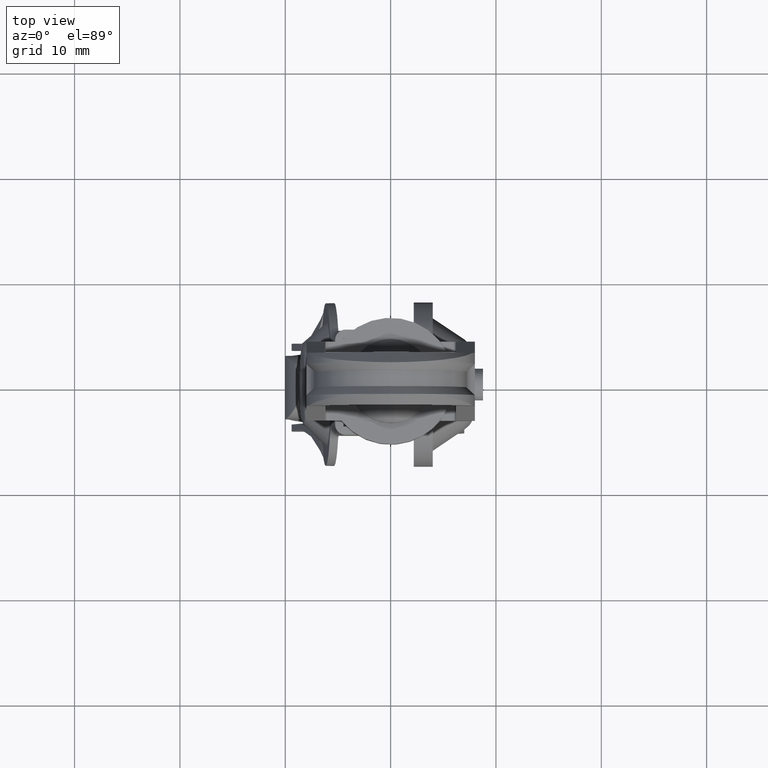
[diagram: clean part render]
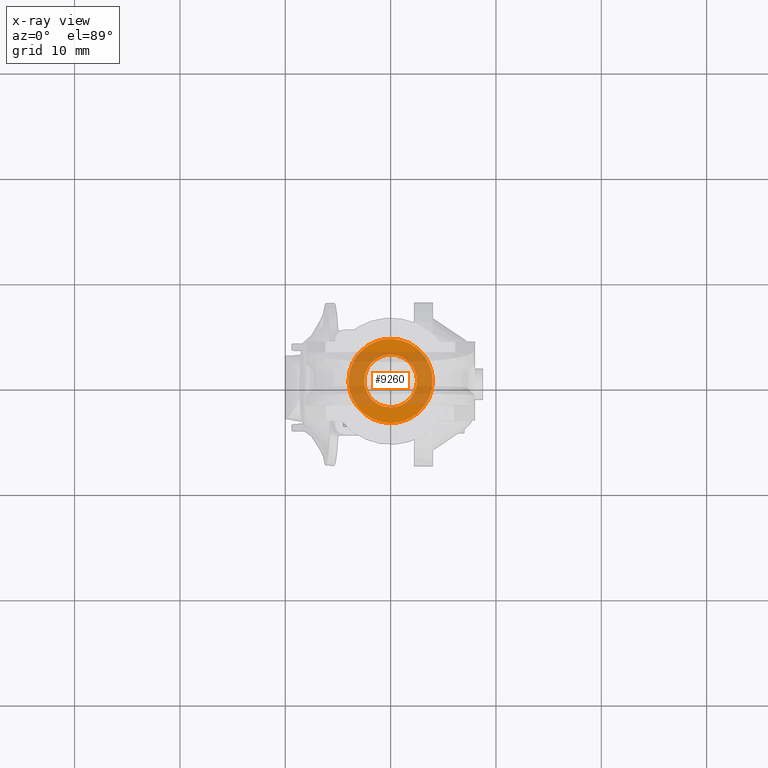
[diagram: x-ray — body ghosted, one internal face saturated and labeled with its STEP entity id]
A machine part, top view, then the same camera in x-ray: the body is ghosted and one INTERNAL B-rep face — a face not visible from any outside direction — is saturated and labeled: STEP entity #9260.
In plain terms, the highlighted face is a freeform B-spline surface patch.
Its self-contained STEP definition (entity closure, byte-faithful):
#8738=CARTESIAN_POINT('',(1.614355218917313,1.908889408930637,10.099997000000659));
#8739=VERTEX_POINT('',#8738);
#8740=CARTESIAN_POINT('',(2.500000000000000,0.0,10.099996999999799));
#8741=VERTEX_POINT('',#8740);
#8742=CARTESIAN_POINT('',(1.614355218917313,1.908889408930637,10.099997000000659));
#8743=CARTESIAN_POINT('',(1.856467371748298,1.704561693184094,10.099997000000601));
#8744=CARTESIAN_POINT('',(2.181404383811068,1.300836415953223,10.099997000000380));
#8745=CARTESIAN_POINT('',(2.447141683513483,0.622153789567454,10.099997000000061));
#8746=CARTESIAN_POINT('',(2.500065376499672,0.214945673676994,10.099996999999940));
#8747=CARTESIAN_POINT('',(2.500000000000000,0.0,10.099996999999799));
#8748=B_SPLINE_CURVE_WITH_KNOTS('',3,(#8742,#8743,#8744,#8745,#8746,#8747),.UNSPECIFIED.,.F.,.U.,(4,1,1,4),(0.000000037123233,0.950270379453395,1.527199225737060,2.172020968677531),.UNSPECIFIED.);
#8749=EDGE_CURVE('',#8739,#8741,#8748,.T.);
#8751=CARTESIAN_POINT('',(-0.000001256133912,-2.499999999999684,10.099996999999799));
#8752=VERTEX_POINT('',#8751);
#8753=CARTESIAN_POINT('',(2.500000000000000,0.0,10.099996999999799));
#8754=CARTESIAN_POINT('',(2.500049442726646,-0.204535890710399,10.099996999999810));
#8755=CARTESIAN_POINT('',(2.457081068846297,-0.552206873104780,10.099996999999769));
#8756=CARTESIAN_POINT('',(2.276784424483382,-1.076352942044348,10.099996999999799));
#8757=CARTESIAN_POINT('',(2.011949638322469,-1.518247726223970,10.099996999999840));
#8758=CARTESIAN_POINT('',(1.671792779934711,-1.875447298746896,10.099996999999769));
#8759=CARTESIAN_POINT('',(1.309391914054753,-2.144195649626459,10.099996999999821));
#8760=CARTESIAN_POINT('',(0.777064632160577,-2.412327376962153,10.099996999999799));
#8761=CARTESIAN_POINT('',(0.306831373687429,-2.500227118434985,10.099996999999799));
#8762=CARTESIAN_POINT('',(-0.000001256133912,-2.499999999999684,10.099996999999799));
#8763=B_SPLINE_CURVE_WITH_KNOTS('',3,(#8753,#8754,#8755,#8756,#8757,#8758,#8759,#8760,#8761,#8762),.UNSPECIFIED.,.F.,.U.,(4,1,1,1,1,1,1,4),(0.000000047926504,0.613604324882520,1.043133455050865,1.656748244386080,2.147620970382965,2.515787605370093,3.006678465587799,3.927090068831801),.UNSPECIFIED.);
#8764=EDGE_CURVE('',#8741,#8752,#8763,.T.);
#8766=CARTESIAN_POINT('',(-2.500000000000000,0.0,10.099996999999799));
#8767=VERTEX_POINT('',#8766);
#8768=CARTESIAN_POINT('',(-0.000001256133912,-2.499999999999684,10.099996999999799));
#8769=CARTESIAN_POINT('',(-0.224996273874240,-2.500081605010838,10.099996999999799));
#8770=CARTESIAN_POINT('',(-0.572642751459438,-2.452719256174887,10.099996999999810));
#8771=CARTESIAN_POINT('',(-1.132671696268208,-2.252404846310712,10.099996999999791));
#8772=CARTESIAN_POINT('',(-1.586833095480801,-1.964858479580427,10.099996999999799));
#8773=CARTESIAN_POINT('',(-1.955212384271885,-1.577743799940139,10.099996999999799));
#8774=CARTESIAN_POINT('',(-2.205884214683731,-1.202606503191386,10.099996999999799));
#8775=CARTESIAN_POINT('',(-2.430797586635717,-0.695325580325931,10.099996999999810));
#8776=CARTESIAN_POINT('',(-2.500159788720839,-0.265910624192008,10.099996999999799));
#8777=CARTESIAN_POINT('',(-2.500000000000000,0.0,10.099996999999799));
#8778=B_SPLINE_CURVE_WITH_KNOTS('',3,(#8768,#8769,#8770,#8771,#8772,#8773,#8774,#8775,#8776,#8777),.UNSPECIFIED.,.F.,.U.,(4,1,1,1,1,1,1,4),(0.000000049645812,0.674965794034729,1.043133080125015,1.779468506136333,2.270341053922298,2.638510095134302,3.129399808780076,3.927088652840794),.UNSPECIFIED.);
#8779=EDGE_CURVE('',#8752,#8767,#8778,.T.);
#8781=CARTESIAN_POINT('',(-1.813435626287737,1.720886301094513,10.099996999998821));
#8782=VERTEX_POINT('',#8781);
#8783=CARTESIAN_POINT('',(-2.500000000000000,0.0,10.099996999999799));
#8784=CARTESIAN_POINT('',(-2.500023030132192,0.177941138321889,10.099996999999711));
#8785=CARTESIAN_POINT('',(-2.459738310384787,0.553591810188240,10.099996999999471));
#8786=CARTESIAN_POINT('',(-2.252037642920566,1.155934168795009,10.099996999999171));
#8787=CARTESIAN_POINT('',(-1.990443671787908,1.534511966475246,10.099996999998909));
#8788=CARTESIAN_POINT('',(-1.813435626287737,1.720886301094513,10.099996999998821));
#8789=B_SPLINE_CURVE_WITH_KNOTS('',3,(#8783,#8784,#8785,#8786,#8787,#8788),.UNSPECIFIED.,.F.,.U.,(4,1,1,4),(0.000000012586808,0.533837862363144,1.126990596822714,1.898090057080998),.UNSPECIFIED.);
#8790=EDGE_CURVE('',#8767,#8782,#8789,.T.);
#8879=CARTESIAN_POINT('',(0.000001256133935,2.499999999999684,10.099996999999799));
#8880=VERTEX_POINT('',#8879);
#8881=CARTESIAN_POINT('',(0.000001256133935,2.499999999999684,10.099996999999799));
#8882=CARTESIAN_POINT('',(0.274237197748799,2.500169901061046,10.099996999999959));
#8883=CARTESIAN_POINT('',(0.859116480362523,2.402741225364907,10.099997000000259));
#8884=CARTESIAN_POINT('',(1.377204786569832,2.109804985667766,10.099997000000510));
#8885=CARTESIAN_POINT('',(1.614355218917313,1.908889408930637,10.099997000000659));
#8886=B_SPLINE_CURVE_WITH_KNOTS('',3,(#8881,#8882,#8883,#8884,#8885),.UNSPECIFIED.,.F.,.U.,(4,1,4),(0.000000015699240,0.822668981119215,1.755020695875273),.UNSPECIFIED.);
#8887=EDGE_CURVE('',#8880,#8739,#8886,.T.);
#8911=CARTESIAN_POINT('',(-1.813435626287737,1.720886301094513,10.099996999998821));
#8912=CARTESIAN_POINT('',(-1.653464544738906,1.889596396183757,10.099996999998920));
#8913=CARTESIAN_POINT('',(-1.336072467665570,2.141915713067021,10.099996999999091));
#8914=CARTESIAN_POINT('',(-0.718489337516694,2.426071820759311,10.099996999999380));
#8915=CARTESIAN_POINT('',(-0.274776495542380,2.500157872215153,10.099996999999700));
#8916=CARTESIAN_POINT('',(0.000001256133935,2.499999999999684,10.099996999999799));
#8917=B_SPLINE_CURVE_WITH_KNOTS('',3,(#8911,#8912,#8913,#8914,#8915,#8916),.UNSPECIFIED.,.F.,.U.,(4,1,1,4),(0.000000029823426,0.697460720499704,1.204687986535786,2.028959870750903),.UNSPECIFIED.);
#8918=EDGE_CURVE('',#8782,#8880,#8917,.T.);
#8955=CARTESIAN_POINT('',(2.582965194720789,3.054219173067256,10.099996999983031));
#8956=VERTEX_POINT('',#8955);
#8957=CARTESIAN_POINT('',(3.999995202849435,0.0,10.099996999999799));
#8958=VERTEX_POINT('',#8957);
#8959=CARTESIAN_POINT('',(2.582965194720789,3.054219173067256,10.099996999983031));
#8960=CARTESIAN_POINT('',(2.804122584341364,2.867244805510997,10.099996999984061));
#8961=CARTESIAN_POINT('',(3.218095063039597,2.431791477941546,10.099996999986439));
#8962=CARTESIAN_POINT('',(3.664946591522849,1.679963031673215,10.099996999990610));
#8963=CARTESIAN_POINT('',(3.938785024243381,0.850686271907890,10.099996999995060));
#8964=CARTESIAN_POINT('',(4.000048268000269,0.289604664791068,10.099996999998250));
#8965=CARTESIAN_POINT('',(3.999995202849435,0.0,10.099996999999799));
#8966=B_SPLINE_CURVE_WITH_KNOTS('',3,(#8959,#8960,#8961,#8962,#8963,#8964,#8965),.UNSPECIFIED.,.F.,.U.,(4,1,1,1,4),(0.000000031049111,0.868807497991541,1.791900485679269,2.606421908046829,3.475229196603689),.UNSPECIFIED.);
#8967=EDGE_CURVE('',#8956,#8958,#8966,.T.);
#9030=CARTESIAN_POINT('',(-2.901493864698967,2.753414848686523,10.099997000029109));
#9031=VERTEX_POINT('',#9030);
#9037=CARTESIAN_POINT('',(-3.999995202849435,0.0,10.099996999999799));
#9038=VERTEX_POINT('',#9037);
#9039=CARTESIAN_POINT('',(-3.999995202849435,0.0,10.099996999999799));
#9040=CARTESIAN_POINT('',(-4.000025116659878,0.268889221167547,10.099997000002670));
#9041=CARTESIAN_POINT('',(-3.942378189935719,0.838287939740826,10.099997000008729));
#9042=CARTESIAN_POINT('',(-3.627494588311503,1.807155346418172,10.099997000019020));
#9043=CARTESIAN_POINT('',(-3.206550486077655,2.432307560436088,10.099997000025720));
#9044=CARTESIAN_POINT('',(-2.901493864698967,2.753414848686523,10.099997000029109));
#9045=B_SPLINE_CURVE_WITH_KNOTS('',3,(#9039,#9040,#9041,#9042,#9043,#9044),.UNSPECIFIED.,.F.,.U.,(4,1,1,4),(0.000000023728952,0.806673999703756,1.708236113276340,3.036886970070334),.UNSPECIFIED.);
#9046=EDGE_CURVE('',#9038,#9031,#9045,.T.);
#9048=CARTESIAN_POINT('',(-0.000001002247980,-3.999995202849310,10.099996999999799));
#9049=VERTEX_POINT('',#9048);
#9050=CARTESIAN_POINT('',(-0.000001002247980,-3.999995202849310,10.099996999999799));
#9051=CARTESIAN_POINT('',(-0.310891203103745,-4.000053598501542,10.099996999999791));
#9052=CARTESIAN_POINT('',(-0.834453470410924,-3.938630422654173,10.099996999999810));
#9053=CARTESIAN_POINT('',(-1.662222631709955,-3.670856571197610,10.099996999999799));
#9054=CARTESIAN_POINT('',(-2.291638771575590,-3.309194969544473,10.099996999999780));
#9055=CARTESIAN_POINT('',(-2.862602433807431,-2.816565628526342,10.099996999999890));
#9056=CARTESIAN_POINT('',(-3.310191417176361,-2.291263821936271,10.099996999999650));
#9057=CARTESIAN_POINT('',(-3.663105948516958,-1.659257822395125,10.099996999999840));
#9058=CARTESIAN_POINT('',(-3.929949386617698,-0.883514429510787,10.099996999999810));
#9059=CARTESIAN_POINT('',(-4.000110322239626,-0.343622468687874,10.099996999999769));
#9060=CARTESIAN_POINT('',(-3.999995202849435,0.0,10.099996999999799));
#9061=B_SPLINE_CURVE_WITH_KNOTS('',3,(#9050,#9051,#9052,#9053,#9054,#9055,#9056,#9057,#9058,#9059,#9060),.UNSPECIFIED.,.F.,.U.,(4,1,1,1,1,1,1,1,4),(0.000000101353600,0.932662223976274,1.570804730874691,2.601659284581132,3.092550718354622,3.828829707222004,4.663324114371328,5.252389203666986,6.283216631226295),.UNSPECIFIED.);
#9062=EDGE_CURVE('',#9049,#9038,#9061,.T.);
#9064=CARTESIAN_POINT('',(3.999995202849435,0.0,10.099996999999799));
#9065=CARTESIAN_POINT('',(4.000002760499576,-0.212705671648924,10.099996999999810));
#9066=CARTESIAN_POINT('',(3.960779353642253,-0.703585584476196,10.099996999999799));
#9067=CARTESIAN_POINT('',(3.784876872384368,-1.354753589599103,10.099996999999780));
#9068=CARTESIAN_POINT('',(3.494168958775108,-1.979205835303808,10.099996999999821));
#9069=CARTESIAN_POINT('',(3.092768819559050,-2.580071543543833,10.099996999999791));
#9070=CARTESIAN_POINT('',(2.530205705557145,-3.135764426802249,10.099996999999780));
#9071=CARTESIAN_POINT('',(1.907898475595657,-3.535132493671162,10.099996999999840));
#9072=CARTESIAN_POINT('',(1.096104355918453,-3.889124184464303,10.099996999999719));
#9073=CARTESIAN_POINT('',(0.458208087778148,-4.000346258808951,10.099997000000020));
#9074=CARTESIAN_POINT('',(-0.000001002247980,-3.999995202849310,10.099996999999799));
#9075=B_SPLINE_CURVE_WITH_KNOTS('',3,(#9064,#9065,#9066,#9067,#9068,#9069,#9070,#9071,#9072,#9073,#9074),.UNSPECIFIED.,.F.,.U.,(4,1,1,1,1,1,1,1,4),(0.000000101005238,0.638124175514847,1.472629031528224,2.012597240039026,2.699829812641529,3.632460431631976,4.368797770326316,4.908764578498698,6.283217761000441),.UNSPECIFIED.);
#9076=EDGE_CURVE('',#8958,#9049,#9075,.T.);
#9095=CARTESIAN_POINT('',(0.000001002247981,3.999995202849310,10.099996999999799));
#9096=VERTEX_POINT('',#9095);
#9097=CARTESIAN_POINT('',(0.000001002247981,3.999995202849310,10.099996999999799));
#9098=CARTESIAN_POINT('',(0.307124750283919,4.000049543187579,10.099996999997821));
#9099=CARTESIAN_POINT('',(0.965243138227389,3.923875943794161,10.099996999993520));
#9100=CARTESIAN_POINT('',(1.848175977199716,3.589587208383732,10.099996999987759));
#9101=CARTESIAN_POINT('',(2.370811255400753,3.233668358039482,10.099996999984439));
#9102=CARTESIAN_POINT('',(2.582965194720789,3.054219173067256,10.099996999983031));
#9103=B_SPLINE_CURVE_WITH_KNOTS('',3,(#9097,#9098,#9099,#9100,#9101,#9102),.UNSPECIFIED.,.F.,.U.,(4,1,1,4),(0.000000020537344,0.921374311782193,1.974364429015121,2.807988559653750),.UNSPECIFIED.);
#9104=EDGE_CURVE('',#9096,#8956,#9103,.T.);
#9106=CARTESIAN_POINT('',(-2.901493864698967,2.753414848686523,10.099997000029109));
#9107=CARTESIAN_POINT('',(-2.692041847883292,2.974224409052268,10.099997000026990));
#9108=CARTESIAN_POINT('',(-2.287602318628968,3.312977742247266,10.099997000022920));
#9109=CARTESIAN_POINT('',(-1.603065247912251,3.687740313024186,10.099997000016010));
#9110=CARTESIAN_POINT('',(-0.862272099153417,3.936005888846792,10.099997000008480));
#9111=CARTESIAN_POINT('',(-0.304346557076441,4.000056729490822,10.099997000002841));
#9112=CARTESIAN_POINT('',(0.000001002247981,3.999995202849310,10.099996999999799));
#9113=B_SPLINE_CURVE_WITH_KNOTS('',3,(#9106,#9107,#9108,#9109,#9110,#9111,#9112),.UNSPECIFIED.,.F.,.U.,(4,1,1,1,4),(0.000000029099466,0.913031927320867,1.572457667278949,2.333299299732289,3.246331197965227),.UNSPECIFIED.);
#9114=EDGE_CURVE('',#9031,#9096,#9113,.T.);
#9239=CARTESIAN_POINT('',(4.399594783206746,-4.399594783206609,10.099996999999799));
#9240=CARTESIAN_POINT('',(-4.399594926257723,-4.399594783206609,10.099996999999799));
#9241=CARTESIAN_POINT('',(4.399594783206746,4.399594926257585,10.099996999999799));
#9242=CARTESIAN_POINT('',(-4.399594926257723,4.399594926257585,10.099996999999799));
#9243=B_SPLINE_SURFACE_WITH_KNOTS('',1,1,((#9239,#9241),(#9240,#9242)),.UNSPECIFIED.,.F.,.F.,.U.,(2,2),(2,2),(0.0,8.799189709464468),(0.0,8.799189709464194),.UNSPECIFIED.);
#9244=ORIENTED_EDGE('',*,*,#9046,.T.);
#9245=ORIENTED_EDGE('',*,*,#9114,.T.);
#9246=ORIENTED_EDGE('',*,*,#9104,.T.);
#9247=ORIENTED_EDGE('',*,*,#8967,.T.);
#9248=ORIENTED_EDGE('',*,*,#9076,.T.);
#9249=ORIENTED_EDGE('',*,*,#9062,.T.);
#9250=EDGE_LOOP('',(#9244,#9245,#9246,#9247,#9248,#9249));
#9251=FACE_OUTER_BOUND('',#9250,.T.);
#9252=ORIENTED_EDGE('',*,*,#8764,.F.);
#9253=ORIENTED_EDGE('',*,*,#8749,.F.);
#9254=ORIENTED_EDGE('',*,*,#8887,.F.);
#9255=ORIENTED_EDGE('',*,*,#8918,.F.);
#9256=ORIENTED_EDGE('',*,*,#8790,.F.);
#9257=ORIENTED_EDGE('',*,*,#8779,.F.);
#9258=EDGE_LOOP('',(#9252,#9253,#9254,#9255,#9256,#9257));
#9259=FACE_BOUND('',#9258,.T.);
#9260=ADVANCED_FACE('',(#9251,#9259),#9243,.T.);